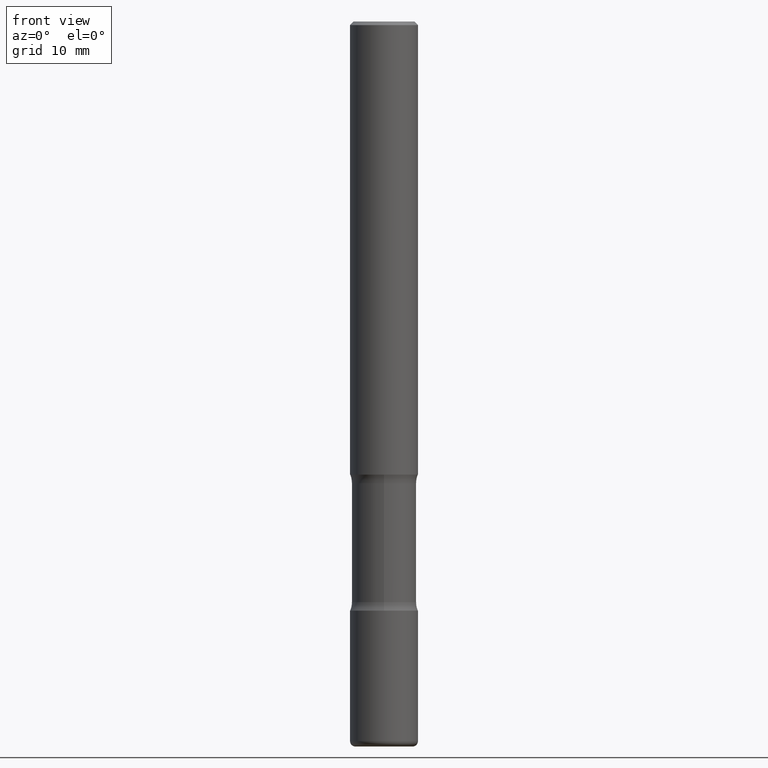
[diagram: clean part render]
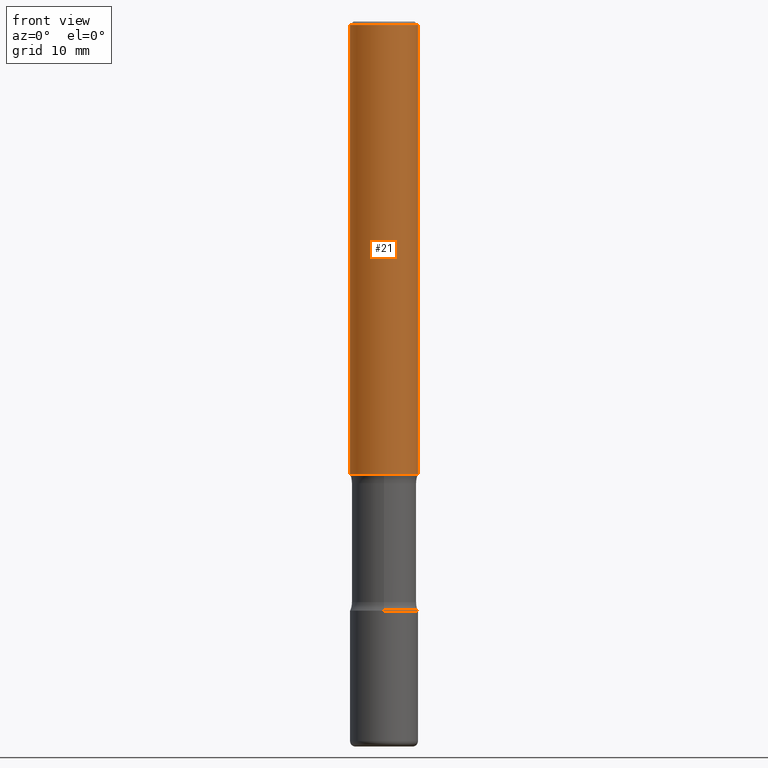
[diagram: same view with one face highlighted and labeled with its STEP entity id]
A machine part, front view. The second image highlights one B-rep face of the part: STEP entity #21.
In plain terms, the highlighted cylindrical surface (edge-blend (fillet) strip) has radius 4.7625 mm, axis along (-0, 0, 1).
Its self-contained STEP definition (entity closure, byte-faithful):
#15 = VERTEX_POINT ( 'NONE', #152 ) ;
#21 = ADVANCED_FACE ( 'NONE', ( #556 ), #179, .T. ) ;
#33 = DIRECTION ( 'NONE',  ( -2.445468806185136597E-29, 3.491481338843145583E-15, 1.000000000000000000 ) ) ;
#34 = EDGE_CURVE ( 'NONE', #15, #254, #295, .T. ) ;
#42 = CIRCLE ( 'NONE', #382, 0.1875000000000001110 ) ;
#55 = LINE ( 'NONE', #58, #207 ) ;
#58 = CARTESIAN_POINT ( 'NONE',  ( -0.1875000000000000278, 1.332267629550188046E-15, -9.223003294227947991E-30 ) ) ;
#65 = AXIS2_PLACEMENT_3D ( 'NONE', #427, #33, #168 ) ;
#80 = CARTESIAN_POINT ( 'NONE',  ( 0.1875000000000000278, -1.309305502066175008E-15, 9.142831454617381013E-30 ) ) ;
#99 = DIRECTION ( 'NONE',  ( 1.000000000000000000, -6.982962677686263555E-15, 0.000000000000000000 ) ) ;
#128 = CARTESIAN_POINT ( 'NONE',  ( 4.890937612370289799E-31, -6.982962677686315028E-17, -0.02000000000000006981 ) ) ;
#141 = CARTESIAN_POINT ( 'NONE',  ( 6.113672015462842613E-29, -8.728703347107864943E-15, -2.500000000000000000 ) ) ;
#152 = CARTESIAN_POINT ( 'NONE',  ( 0.1875000000000001110, -1.003800884917403995E-14, -2.500000000000000000 ) ) ;
#159 = EDGE_LOOP ( 'NONE', ( #560, #540, #468, #413 ) ) ;
#167 = EDGE_CURVE ( 'NONE', #502, #15, #42, .T. ) ;
#168 = DIRECTION ( 'NONE',  ( 1.000000000000000000, -6.982962677686265922E-15, 4.876176775795935793E-29 ) ) ;
#176 = DIRECTION ( 'NONE',  ( -2.445468806185136597E-29, 3.491481338843145583E-15, 1.000000000000000000 ) ) ;
#179 = CYLINDRICAL_SURFACE ( 'NONE', #65, 0.1875000000000000278 ) ;
#184 = EDGE_CURVE ( 'NONE', #502, #409, #55, .T. ) ;
#188 = CARTESIAN_POINT ( 'NONE',  ( 0.1874999999999999167, -1.356173001359024677E-15, -0.02000000000000006981 ) ) ;
#207 = VECTOR ( 'NONE', #231, 39.37007874015748143 ) ;
#231 = DIRECTION ( 'NONE',  ( -2.445468806185136877E-29, 3.491481338843145188E-15, 1.000000000000000000 ) ) ;
#254 = VERTEX_POINT ( 'NONE', #188 ) ;
#295 = LINE ( 'NONE', #80, #309 ) ;
#309 = VECTOR ( 'NONE', #440, 39.37007874015748143 ) ;
#382 = AXIS2_PLACEMENT_3D ( 'NONE', #141, #446, #99 ) ;
#385 = CARTESIAN_POINT ( 'NONE',  ( -0.1875000000000000833, -3.066998857392172722E-15, -2.500000000000000000 ) ) ;
#391 = EDGE_CURVE ( 'NONE', #409, #254, #435, .T. ) ;
#409 = VERTEX_POINT ( 'NONE', #558 ) ;
#413 = ORIENTED_EDGE ( 'NONE', *, *, #391, .F. ) ;
#424 = DIRECTION ( 'NONE',  ( 1.000000000000000000, -6.982962677686265922E-15, 0.000000000000000000 ) ) ;
#427 = CARTESIAN_POINT ( 'NONE',  ( 0.000000000000000000, 0.000000000000000000, 0.000000000000000000 ) ) ;
#435 = CIRCLE ( 'NONE', #480, 0.1874999999999999167 ) ;
#440 = DIRECTION ( 'NONE',  ( -2.445468806185136877E-29, 3.491481338843145188E-15, 1.000000000000000000 ) ) ;
#446 = DIRECTION ( 'NONE',  ( -2.445468806185136597E-29, 3.491481338843145583E-15, 1.000000000000000000 ) ) ;
#468 = ORIENTED_EDGE ( 'NONE', *, *, #34, .T. ) ;
#480 = AXIS2_PLACEMENT_3D ( 'NONE', #128, #176, #424 ) ;
#502 = VERTEX_POINT ( 'NONE', #385 ) ;
#540 = ORIENTED_EDGE ( 'NONE', *, *, #167, .T. ) ;
#556 = FACE_OUTER_BOUND ( 'NONE', #159, .T. ) ;
#558 = CARTESIAN_POINT ( 'NONE',  ( -0.1874999999999999167, 1.239475875289311118E-15, -0.02000000000000006981 ) ) ;
#560 = ORIENTED_EDGE ( 'NONE', *, *, #184, .F. ) ;